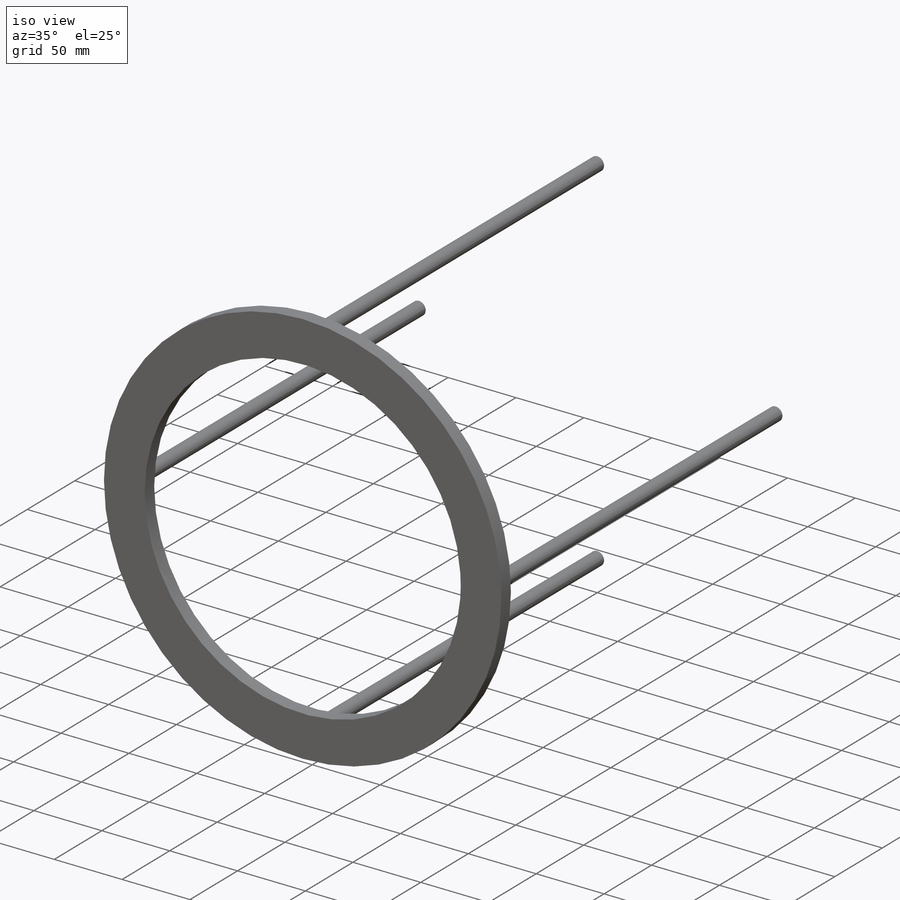
[diagram: iso view]
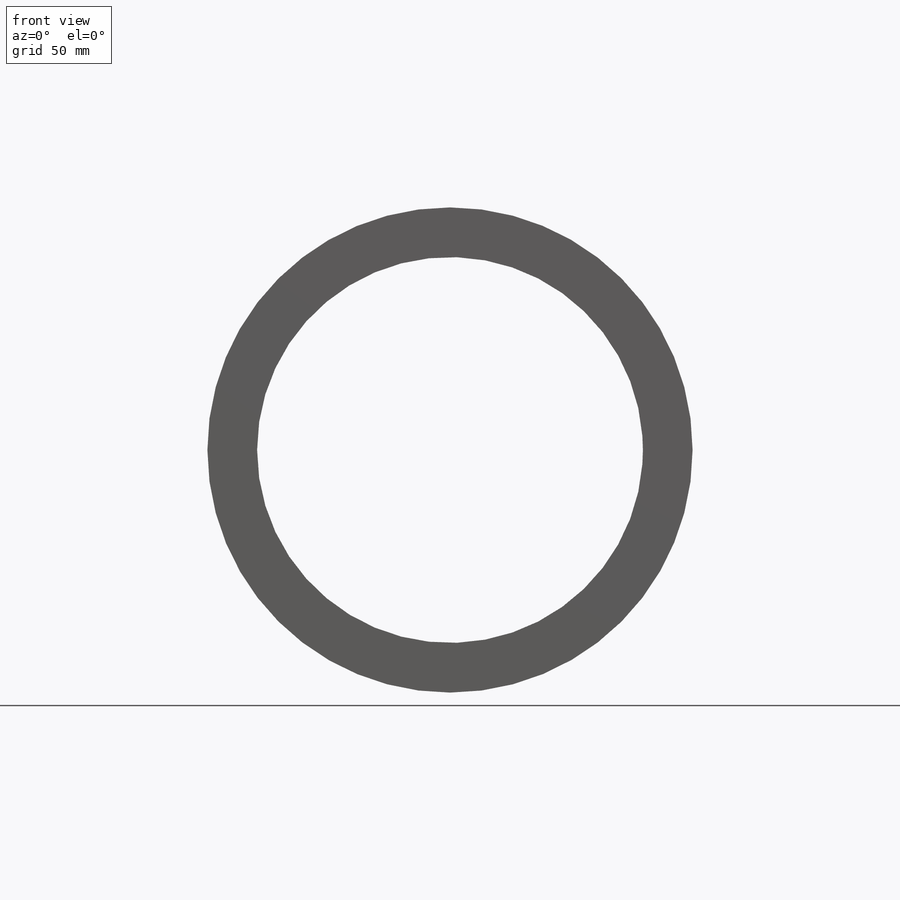
[diagram: front view]
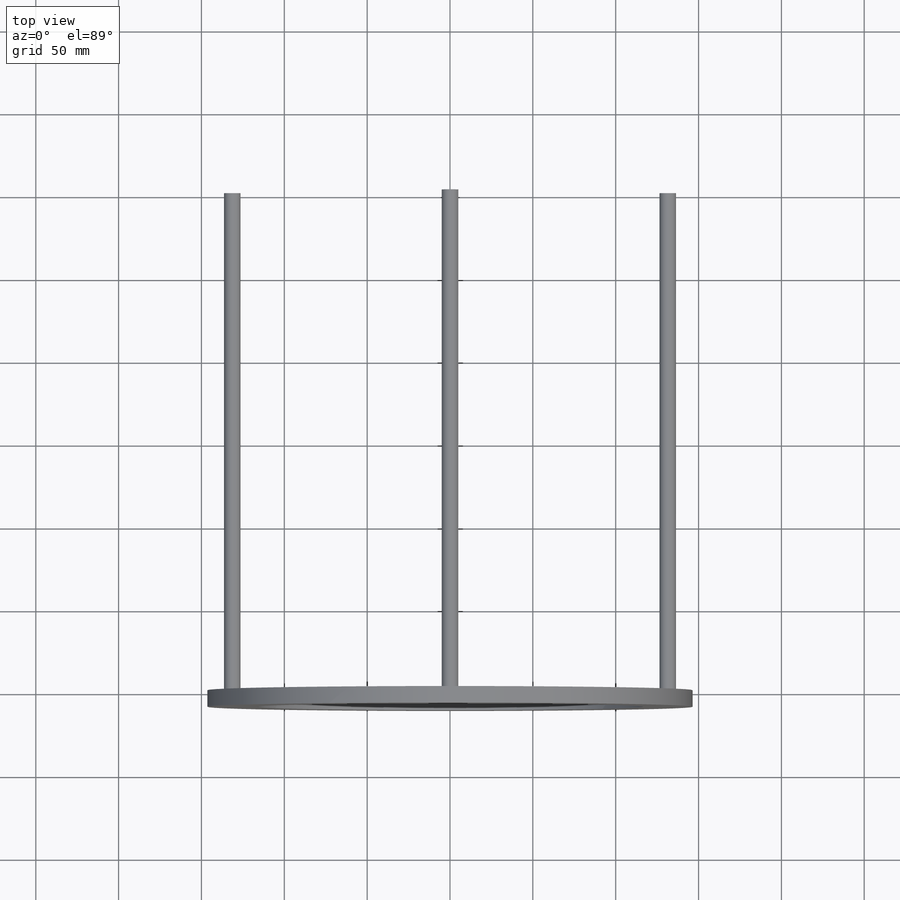
[diagram: top view]
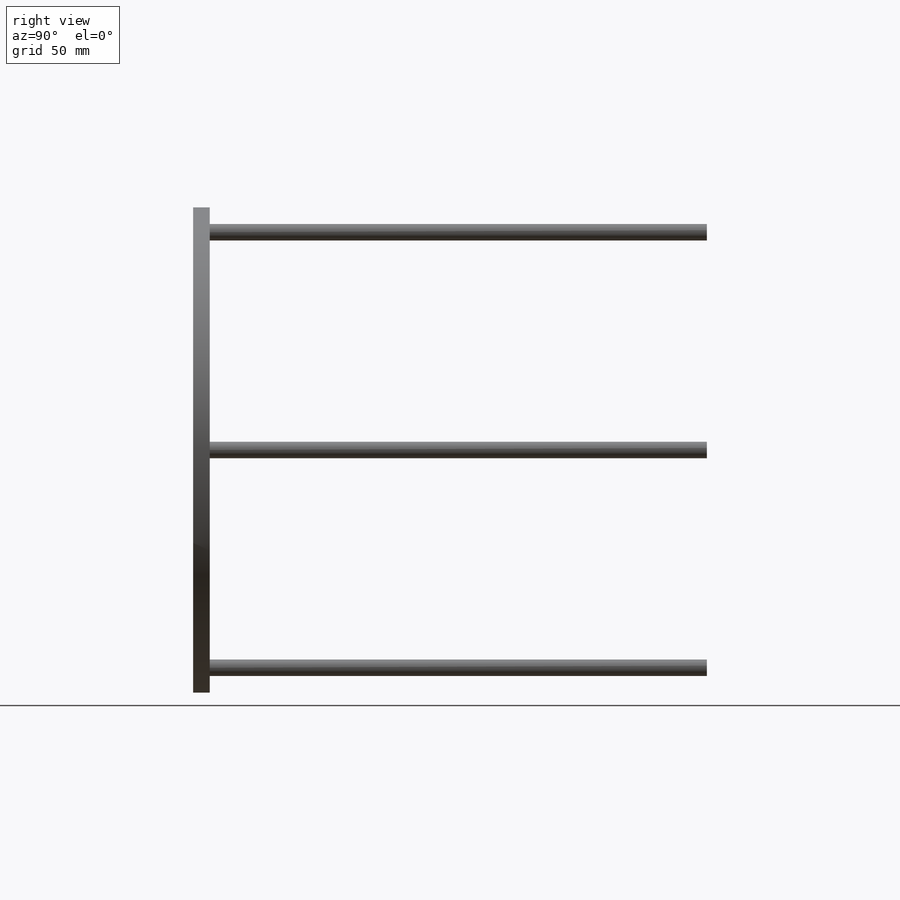
[diagram: right view]
SOLIDWORKS PART (.sldprt)
format: sldprt  version: not decoded by parser v0  size: 176,640 bytes
history: native  units: mm
features: sketch x3, extrude x2, material x1 (+16 scaffold rows collapsed)
feature tree (22):
  scaffold x16  (default folders/planes/origin — collapsed)
  material  "Material <not specified>"
  sketch  "Sketch2"  dims[D1=~292.842712mm D2=~232.842712mm]
  extrude  "Boss-Extrude1"  Depth=10mm
  sketch  "Sketch5"  dims[c1.D1=~262.842712mm c1.D2=135.0deg c2.D2=~141.421356mm]
  sketch  "Sketch7"  dims[D1=~11.978404mm]
  extrude  "Boss-Extrude3"  Depth=300mm
decode coverage: 5 of 5 modeling features carry decoded parameters
note: ~ marks probable driven/reference dimensions
note: suppression state not decoded; provenance and decode notes live in map.json
